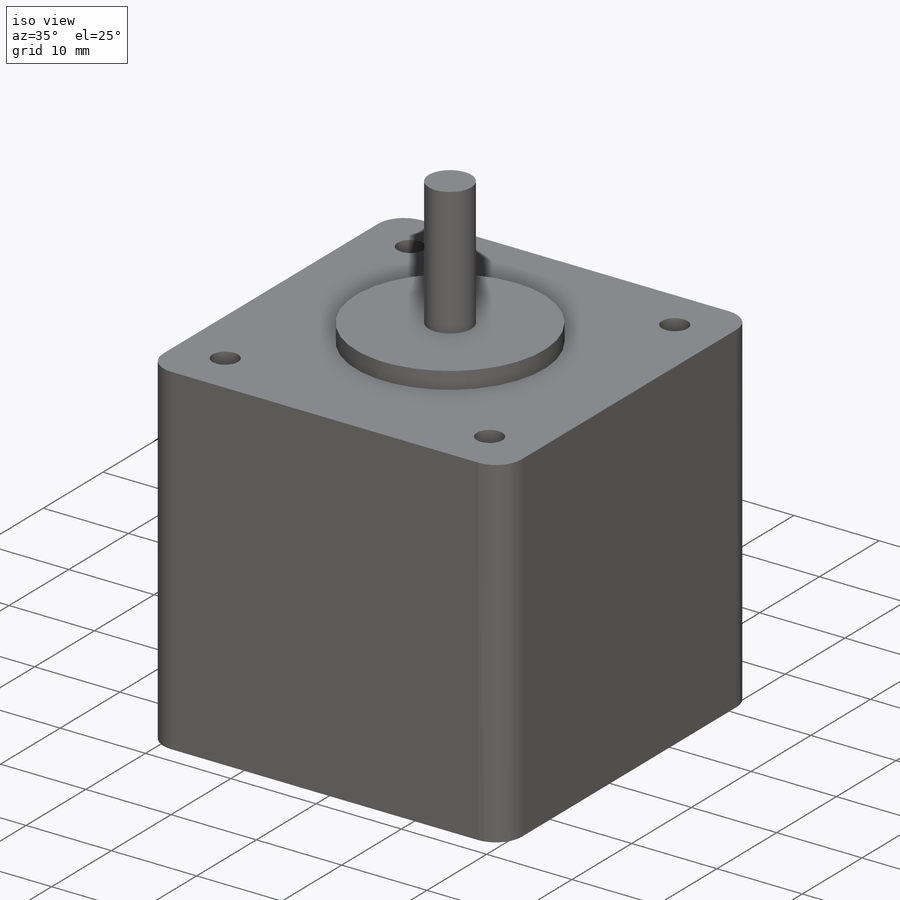
[diagram: iso view]
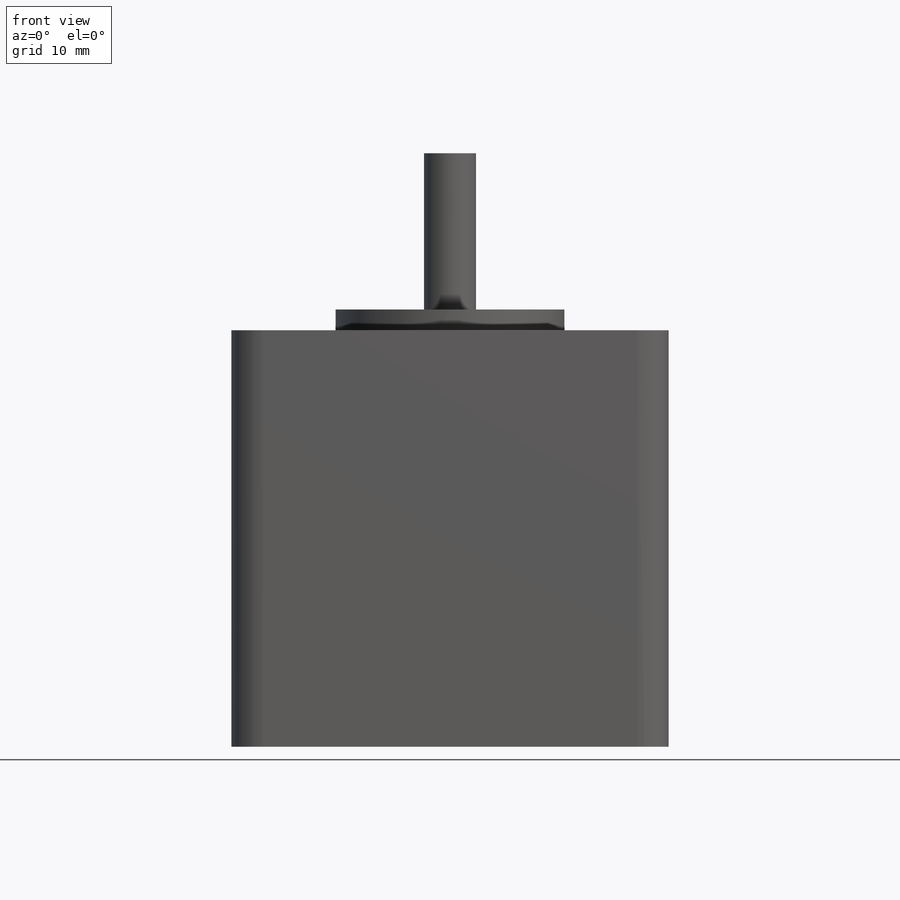
[diagram: front view]
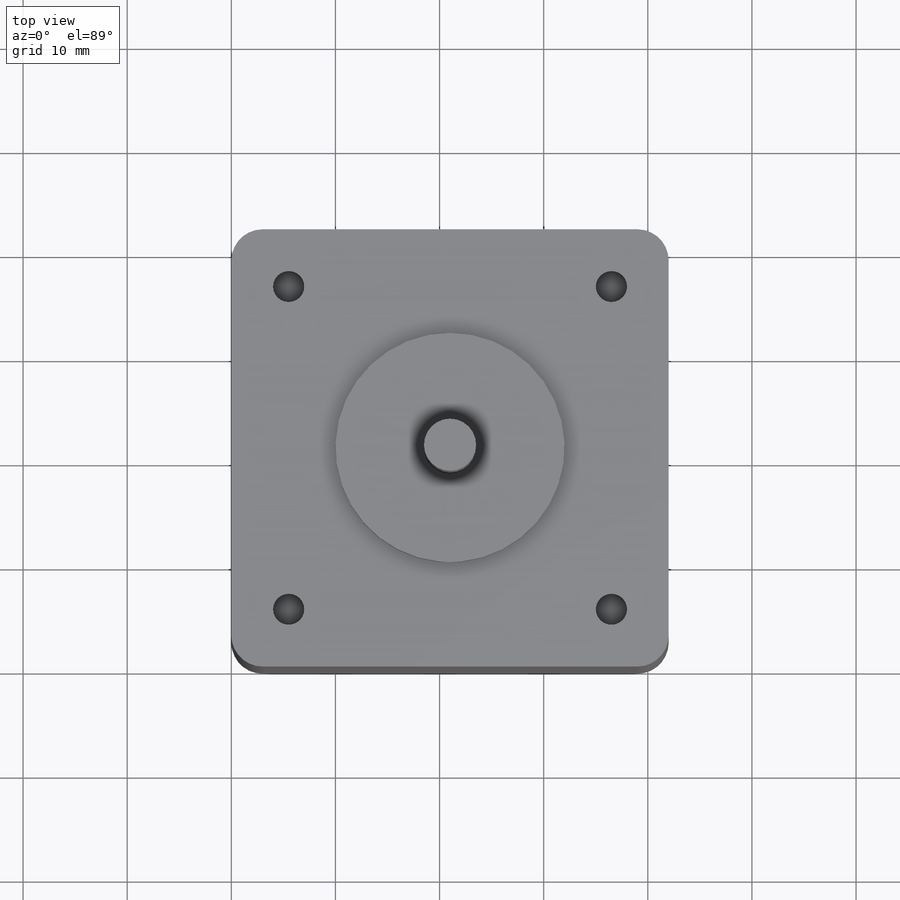
[diagram: top view]
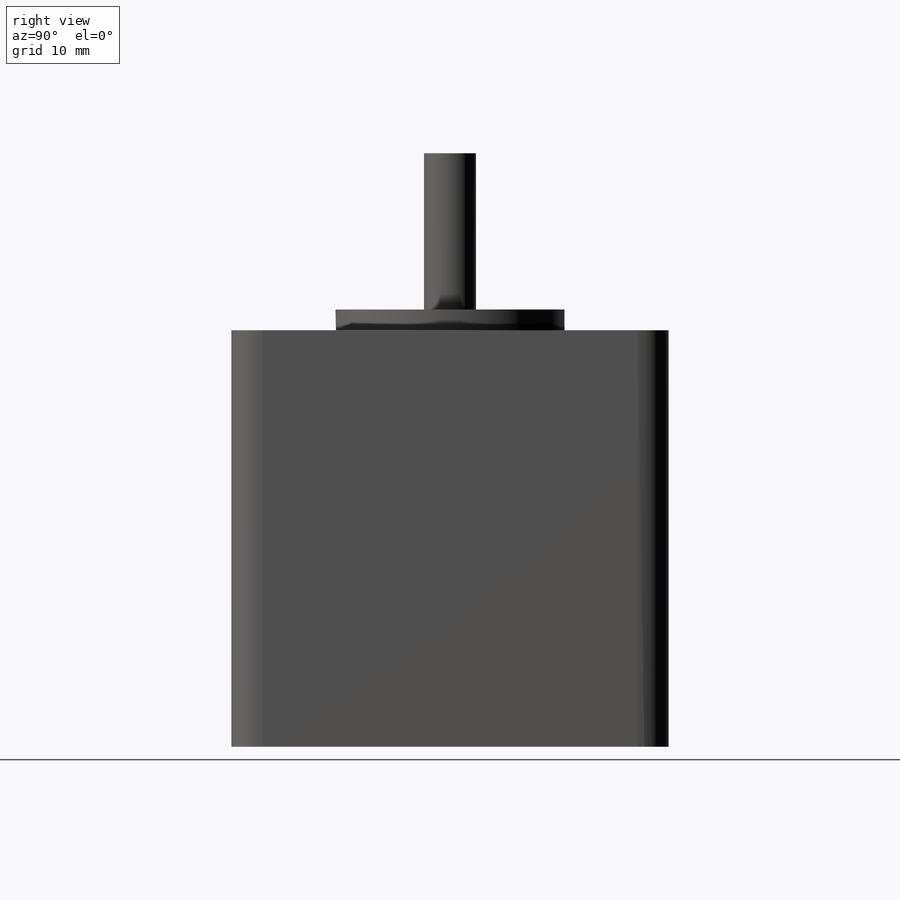
[diagram: right view]
SOLIDWORKS PART (.sldprt)
format: sldprt  version: not decoded by parser v0  size: 164,864 bytes
history: native  units: mm
features: sketch x4, extrude x3, material x1, cut_extrude x1 (+11 scaffold rows collapsed)
feature tree (20):
  scaffold x11  (default folders/planes/origin — collapsed)
  material  "Rubber"
  sketch  "Sketch1"  dims[D1=42.0mm D2=42.0mm]
  extrude  "Boss-Extrude1"  Depth=40mm
  sketch  "Sketch2"  dims[D1=21.0mm D2=21.0mm]
  extrude  "Boss-Extrude2"  Depth=2mm
  sketch  "Sketch3"  dims[D1=5.0mm]
  extrude  "Boss-Extrude3"  Depth=15mm
  sketch  "Sketch4"  dims[c1.D1=~2.933516mm c1.D3=~4.344194mm c1.D4=~6.655806mm c2.D1=5.5mm c2.D2=~5.602072mm c3.D1=5.5mm c3.D2=5.5mm c3.D4=2.0 c3.D5=2.0]
  cut_extrude  "Cut-Extrude1"  Depth=5mm
decode coverage: 8 of 8 modeling features carry decoded parameters
note: ~ marks probable driven/reference dimensions
note: suppression state not decoded; provenance and decode notes live in map.json
